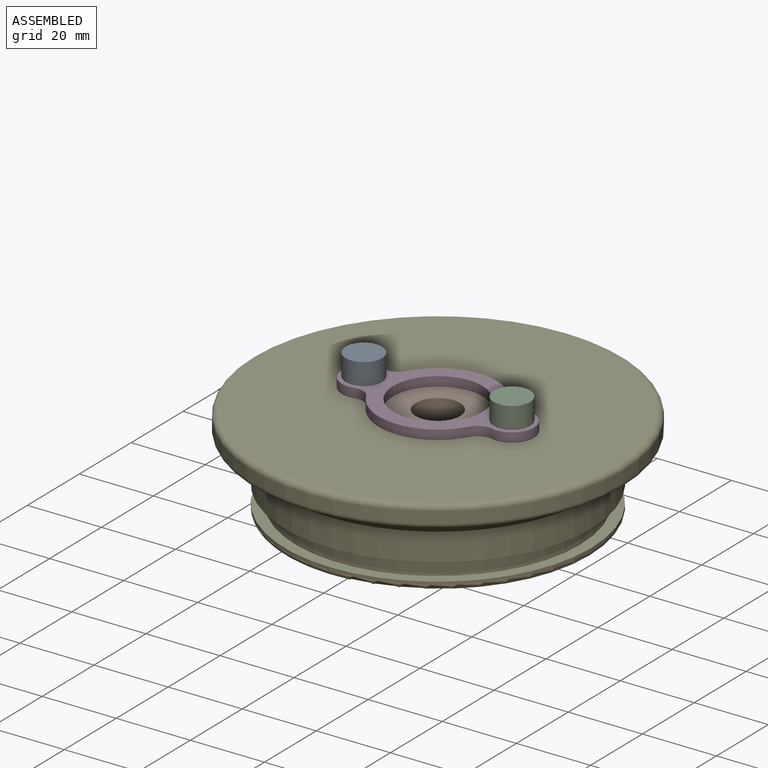
[diagram: assembled view]
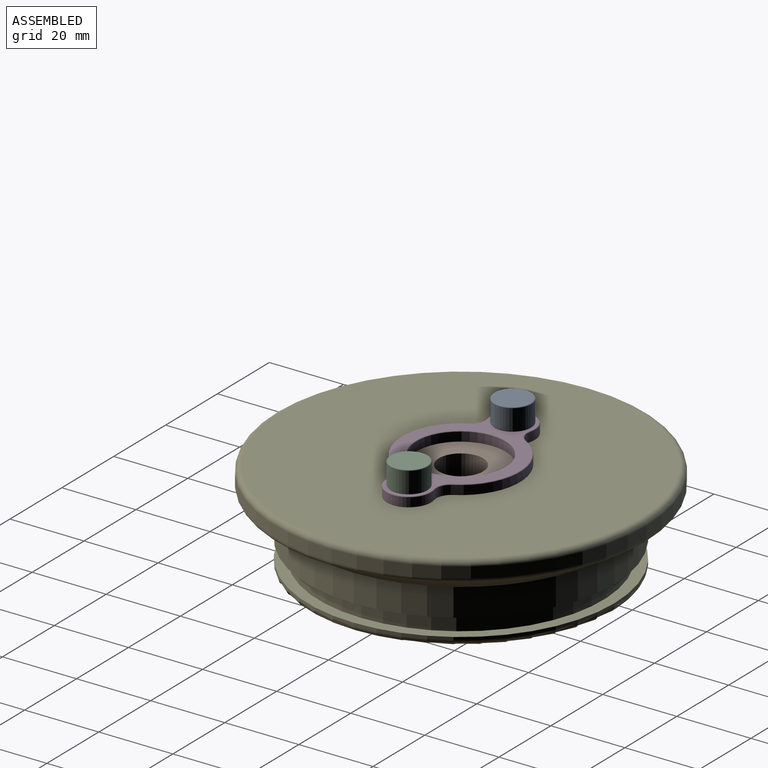
[diagram: assembled view, second angle]
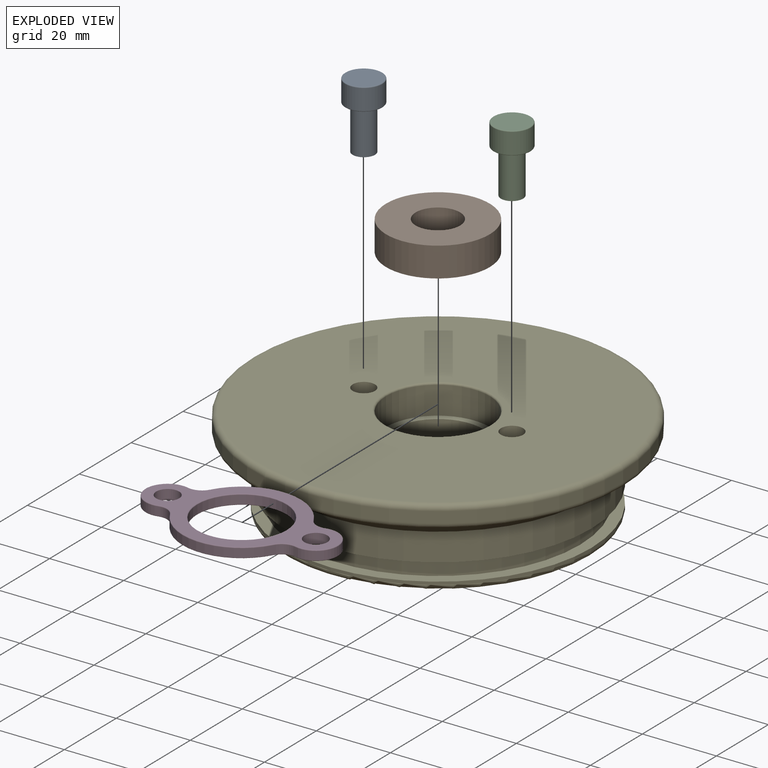
[diagram: exploded view]
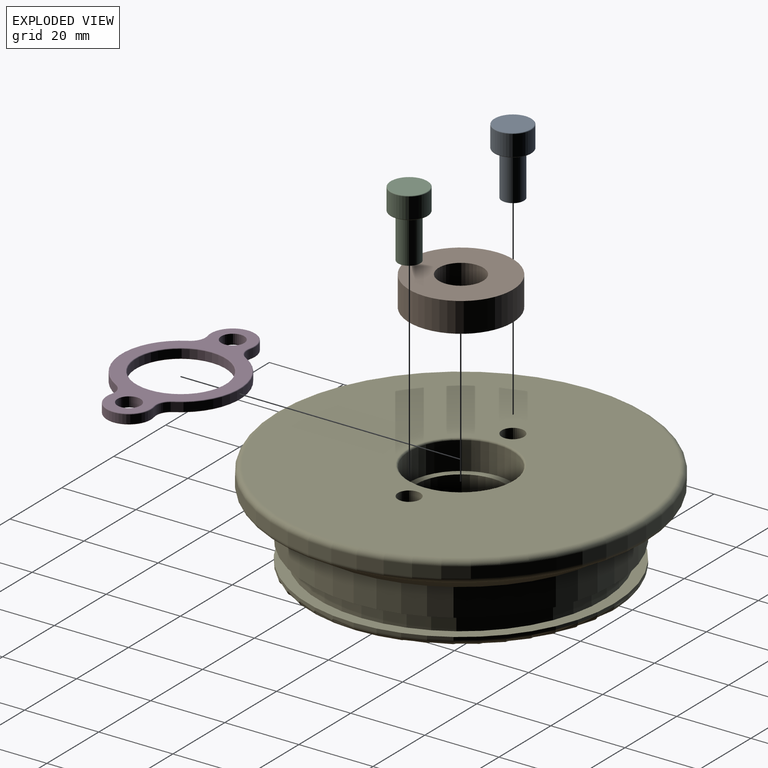
[diagram: exploded view, second angle]
ASSEMBLY  parts=5 mates=4
PART A: 7 faces, bbox 10.8x10.8x18 mm
  f0: cylinder r=3mm len=12mm, axis (0,0,-1), area 226.2mm2, adj f1,f3
  f1: plane 6x6mm, normal (0,0,1), area 28.3mm2, adj f0
  f2: cylinder r=5mm len=10mm, axis (0,0,-1), area 175.9mm2, adj f5,f6
  f3: plane 9.6x9.6mm, normal (0,0,1), area 44.1mm2, adj f0,f6
  f4: plane 9.6x9.6mm, normal (0,0,-1), area 72.4mm2, adj f5
  f5: torus R=4.8mm, axis (0,0,1), area 9.7mm2, adj f2,f4
  f6: torus R=4.8mm, axis (0,0,1), area 9.7mm2, adj f2,f3
PART B: 4 faces, bbox 28x28x8 mm
  f0: cylinder r=6mm len=12mm, axis (0,0,-1), area 301.6mm2, adj f2,f3
  f1: cylinder r=14mm len=28mm, axis (0,0,-1), area 703.7mm2, adj f2,f3
  f2: plane 28x28mm, normal (0,0,1), area 502.7mm2, adj f0,f1
  f3: plane 28x28mm, normal (0,0,-1), area 502.7mm2, adj f0,f1
PART C: same geometry as A
PART D: 31 faces, bbox 53x34.6x2.7 mm
  f0: cylinder r=12mm len=24mm, axis (0,0,-1), area 173.4mm2, adj f21,f30
  f1: plane 51.6x31.6mm, normal (0,0,-1), area 467.5mm2, adj f2,f3,f22,f23,f24,f25,f26,f27
  f2: cylinder r=3.1mm len=6.2mm, axis (0,0,1), area 52.6mm2, adj f1,f12
  f3: cylinder r=3.1mm len=6.2mm, axis (0,0,1), area 52.6mm2, adj f1,f12
  f4: cylinder r=4mm len=4.5mm, axis (0,0,-1), area 12.1mm2, adj f5,f11,f19,f28
  f5: cylinder r=6mm len=12mm, axis (0,0,-1), area 50.3mm2, adj f4,f6,f17,f26
  f6: cylinder r=4mm len=4.5mm, axis (0,0,-1), area 12.1mm2, adj f5,f7,f15,f24
  f7: cylinder r=16mm len=28mm, axis (0,0,-1), area 78.4mm2, adj f6,f8,f13,f22
  f8: cylinder r=4mm len=4.5mm, axis (0,0,-1), area 12.1mm2, adj f7,f9,f14,f23
  f9: cylinder r=6mm len=12mm, axis (0,0,-1), area 50.3mm2, adj f8,f10,f16,f25
  f10: cylinder r=4mm len=4.5mm, axis (0,0,-1), area 12.1mm2, adj f9,f11,f18,f27
  f11: cylinder r=16mm len=28mm, axis (0,0,-1), area 78.4mm2, adj f4,f10,f20,f29
  f12: plane 51.6x31.6mm, normal (0,0,1), area 467.5mm2, adj f2,f3,f13,f14,f15,f16,f17,f18
  f13: torus R=15.8mm, axis (0,0,1), area 10.7mm2, adj f7,f12,f14,f15
  f14: torus R=4.2mm, axis (0,0,1), area 1.7mm2, adj f8,f12,f13,f16
  f15: torus R=4.2mm, axis (0,0,1), area 1.7mm2, adj f6,f12,f13,f17
  f16: torus R=5.8mm, axis (0,0,1), area 6.8mm2, adj f9,f12,f14,f18
  f17: torus R=5.8mm, axis (0,0,1), area 6.8mm2, adj f5,f12,f15,f19
  f18: torus R=4.2mm, axis (0,0,1), area 1.7mm2, adj f10,f12,f16,f20
  f19: torus R=4.2mm, axis (0,0,1), area 1.7mm2, adj f4,f12,f17,f20
  f20: torus R=15.8mm, axis (0,0,1), area 10.7mm2, adj f11,f12,f18,f19
  f21: torus R=12.2mm, axis (0,0,1), area 23.8mm2, adj f0,f12
  f22: torus R=15.8mm, axis (0,0,1), area 10.7mm2, adj f1,f7,f23,f24
  f23: torus R=4.2mm, axis (0,0,1), area 1.7mm2, adj f1,f8,f22,f25
  f24: torus R=4.2mm, axis (0,0,1), area 1.7mm2, adj f1,f6,f22,f26
  f25: torus R=5.8mm, axis (0,0,1), area 6.8mm2, adj f1,f9,f23,f27
  f26: torus R=5.8mm, axis (0,0,1), area 6.8mm2, adj f1,f5,f24,f28
  f27: torus R=4.2mm, axis (0,0,1), area 1.7mm2, adj f1,f10,f25,f29
  f28: torus R=4.2mm, axis (0,0,1), area 1.7mm2, adj f1,f4,f26,f29
  f29: torus R=15.8mm, axis (0,0,1), area 10.7mm2, adj f1,f11,f27,f28
  f30: torus R=12.2mm, axis (0,0,1), area 23.8mm2, adj f0,f1
PART E: 27 faces, bbox 108.2x108.2x25 mm
  f0: plane 59.4x59.4mm, normal (0,0,-1), area 2303.6mm2, adj f1,f25
  f1: cylinder r=12.2mm len=24.4mm, axis (0,0,1), area 801.9mm2, adj f0,f2
  f2: plane 28x28mm, normal (0,0,1), area 148.2mm2, adj f1,f3
  f3: cylinder r=14mm len=28mm, axis (0,0,1), area 659.7mm2, adj f2,f21
  f4: plane 97x97mm, normal (0,0,1), area 6672.7mm2, adj f15,f18,f20,f21
  f5: cylinder r=50mm len=100mm, axis (0,0,1), area 942.5mm2, adj f15,f16
  f6: plane 97x97mm, normal (0,0,-1), area 698.8mm2, adj f7,f16
  f7: cone r=41.4mm half-angle=46.5deg, axis (0,0,1), area 1799.7mm2, adj f6,f8
  f8: cylinder r=41.4mm len=82.8mm, axis (0,0,1), area 1950.9mm2, adj f7,f9
  f9: plane 82.8x82.8mm, normal (0,0,-1), area 752.1mm2, adj f8,f10
  f10: cylinder r=38.4mm len=76.8mm, axis (0,0,1), area 1134mm2, adj f9,f11
  f11: plane 82.8x82.8mm, normal (0,0,1), area 752.1mm2, adj f10,f12
  f12: cylinder r=41.4mm len=82.8mm, axis (0,0,1), area 208.1mm2, adj f11,f13
  f13: torus R=39.9mm, axis (0,0,1), area 604.8mm2, adj f12,f14
  f14: plane 79.8x79.8mm, normal (0,0,-1), area 536.3mm2, adj f13,f26
  f15: torus R=48.5mm, axis (0,0,1), area 732.2mm2, adj f4,f5
  f16: torus R=48.5mm, axis (0,0,-1), area 732.2mm2, adj f5,f6
  f17: cone r=0mm half-angle=59deg, axis (0,0,1), area 33mm2, adj f18
  f18: cylinder r=3mm len=10mm, axis (0,0,1), area 188.5mm2, adj f4,f17
  f19: cone r=0mm half-angle=59deg, axis (0,0,1), area 33mm2, adj f20
  f20: cylinder r=3mm len=10mm, axis (0,0,1), area 188.5mm2, adj f4,f19
  f21: torus R=14.5mm, axis (0,0,1), area 70mm2, adj f3,f4
  f22: cylinder r=30mm len=60mm, axis (0,0,-1), area 1255.5mm2, adj f24,f25
  f23: cylinder r=37.4mm len=74.8mm, axis (0,0,-1), area 3101.9mm2, adj f24,f26
  f24: plane 74.8x74.8mm, normal (0,0,-1), area 1566.9mm2, adj f22,f23
  f25: torus R=29.7mm, axis (0,0,-1), area 88.5mm2, adj f0,f22
  f26: torus R=37.7mm, axis (0,0,-1), area 111.1mm2, adj f14,f23
PLACE A rot(axis=(0,1,0),180deg) t=(-73.57,6.27,55.35)mm
PLACE B t=(-53.57,6.27,38.65)mm
PLACE C rot(axis=(0,1,0),180deg) t=(-33.57,6.27,55.35)mm
PLACE D t=(-53.57,6.27,46.65)mm
PLACE E t=(-53.57,6.27,43.15)mm
MATE fastened D.f2 <-> E.f19  axis (0,0,-1) through (-73.57,6.27,46.65)mm
MATE fastened B.f0 <-> E.f1  axis (0,0,-1) through (-53.57,6.27,38.65)mm
MATE fastened A.f2 <-> D.f2  axis (0,0,-1) through (-73.57,6.27,49.35)mm
MATE fastened C.f0 <-> D.f3  axis (0,0,-1) through (-33.57,6.27,49.35)mm
